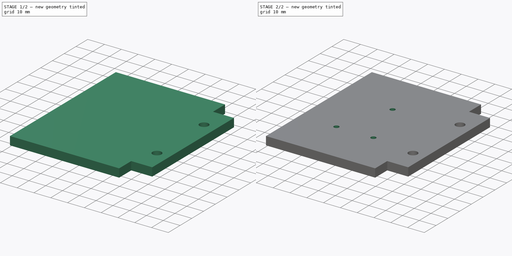
[diagram: build sequence overview — one tinted view per stage of 2, left to right]
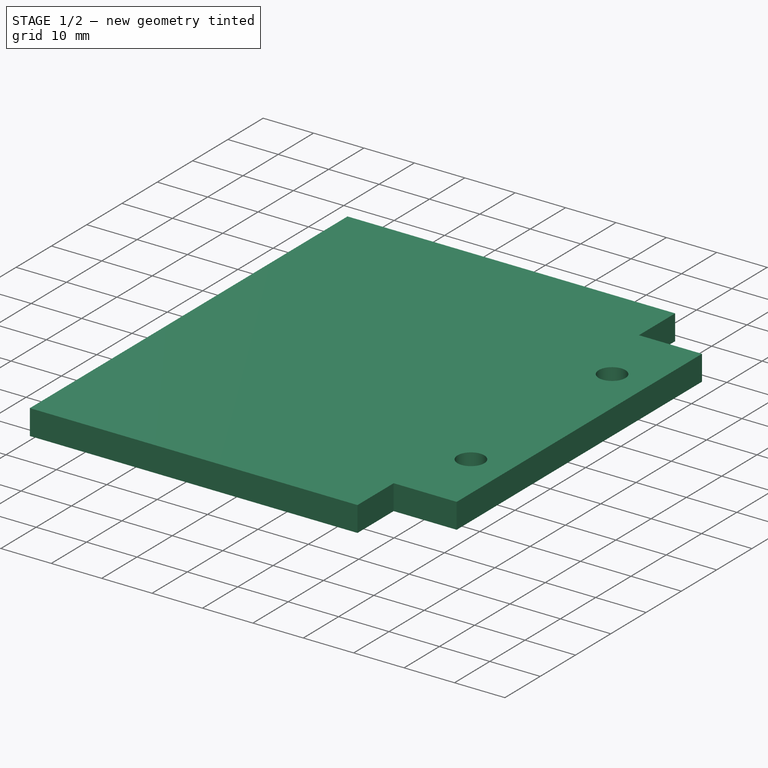
[diagram: stage 1 of 2 — iso view after this stage's code; geometry added in this stage tinted green]
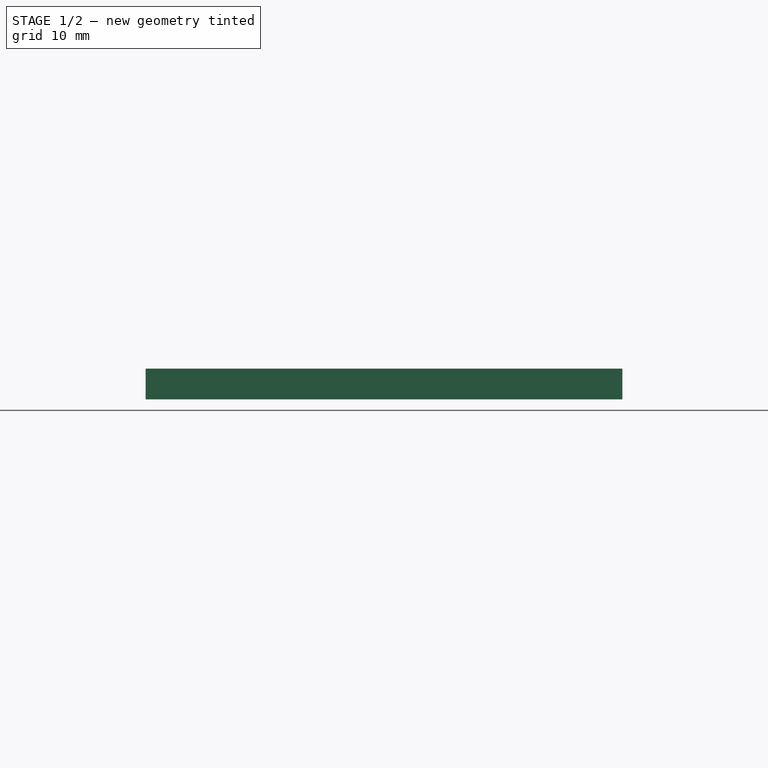
[diagram: stage 1 of 2 — front view after this stage's code; geometry added in this stage tinted green]
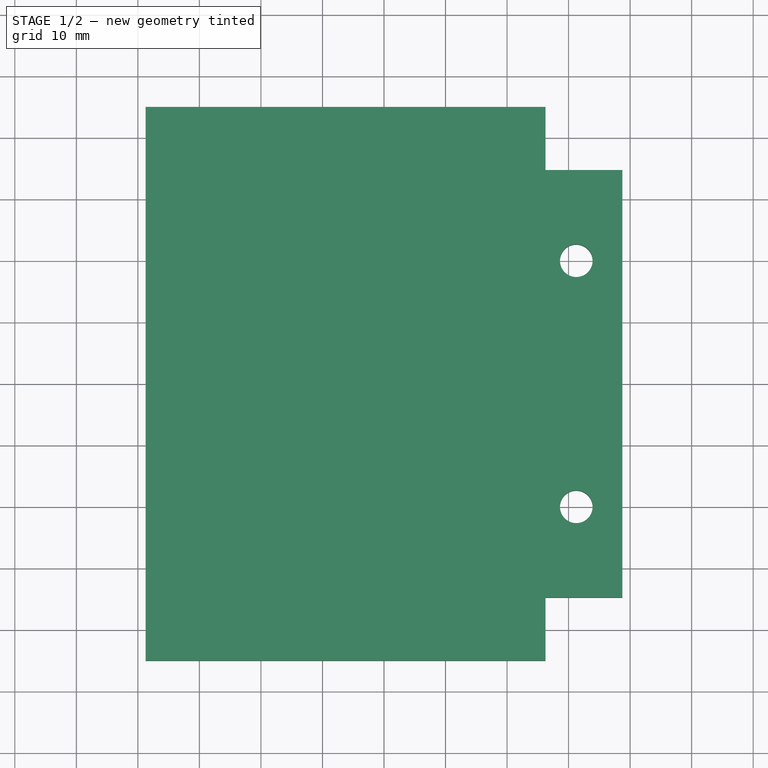
[diagram: stage 1 of 2 — top view after this stage's code; geometry added in this stage tinted green]
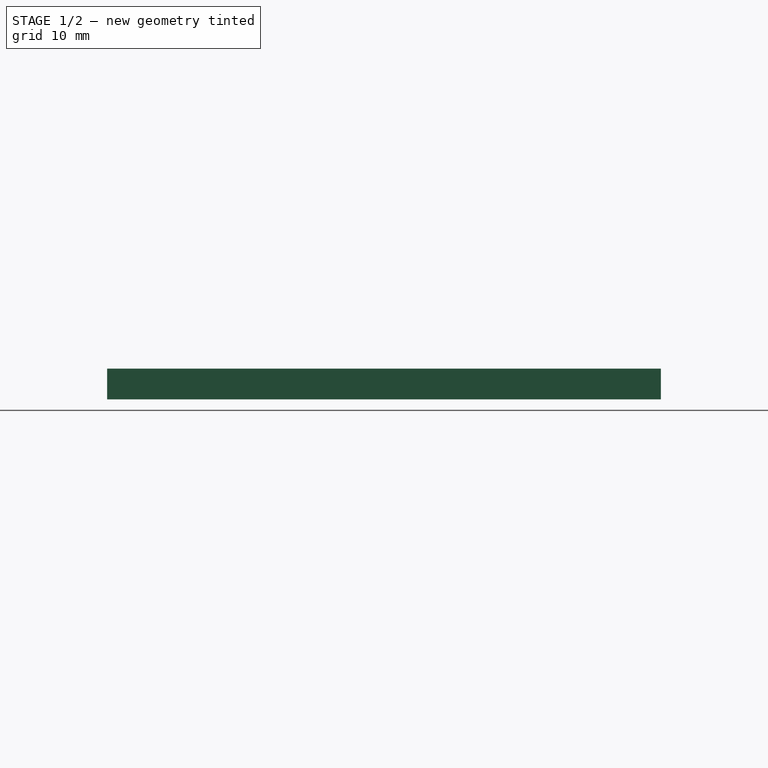
[diagram: stage 1 of 2 — right view after this stage's code; geometry added in this stage tinted green]
FCSTD DOCUMENT  (FreeCAD 0.21R33771 (Git))
Label: BatteryMount00
License: All rights reserved
LicenseURL: https://en.wikipedia.org/wiki/All_rights_reserved
objects: Sketcher::SketchObject×3, PartDesign::Pocket×2, PartDesign::Pad×1, PartDesign::Body×1
note: 10 computed .brp shape members not serialized (recipe doc carries the construction recipe); baked Part::Feature solids carry a one-line shape summary decoded from their .brp

FEATURE [Sketcher::SketchObject] Sketch
  FullyConstrained = true
  MapMode = 5
  Support = -> [XY_Plane]
  sketch-geometry (8):
    g0: LineSegment StartX=38.75 StartY=34.75 StartZ=0 EndX=38.75 EndY=-34.75 EndZ=0
    g1: LineSegment StartX=38.75 StartY=-34.75 StartZ=0 EndX=26.25 EndY=-34.75 EndZ=0
    g2: LineSegment StartX=26.25 StartY=-34.75 StartZ=0 EndX=26.25 EndY=-45 EndZ=0
    g3: LineSegment StartX=26.25 StartY=-45 StartZ=0 EndX=-38.75 EndY=-45 EndZ=0
    g4: LineSegment StartX=-38.75 StartY=-45 StartZ=0 EndX=-38.75 EndY=45 EndZ=0
    g5: LineSegment StartX=-38.75 StartY=45 StartZ=0 EndX=26.25 EndY=45 EndZ=0
    g6: LineSegment StartX=26.25 StartY=45 StartZ=0 EndX=26.25 EndY=34.75 EndZ=0
    g7: LineSegment StartX=26.25 StartY=34.75 StartZ=0 EndX=38.75 EndY=34.75 EndZ=0
  constraints (24):
    c: Vertical(g0)
    c: Coincident(g0,g1)
    c: Horizontal(g1)
    c: Coincident(g1,g2)
    c: Vertical(g2)
    c: Coincident(g2,g3)
    c: Horizontal(g3)
    c: Coincident(g3,g4)
    c: Vertical(g4)
    c: Coincident(g4,g5)
    c: Horizontal(g5)
    c: Coincident(g5,g6)
    c: Vertical(g6)
    c: Coincident(g6,g7)
    c: Coincident(g7,g0)
    c: Horizontal(g7)
    c: DistanceX(g5,g5) = 65
    c: DistanceX(g1,g6) = 0
    c: DistanceX(g4,g0) = 77.5
    c: DistanceX(g4,g-1) = 38.75
    c: DistanceY(g3,g4) = 90
    c: DistanceY(g3,g-1) = 45
    c: DistanceY(g2,g1) = 10.25
    c: DistanceY(g6,g5) = 10.25
FEATURE [PartDesign::Pad] Pad
  Direction = (0,0,1)
  Length = 5
  Length2 = 10
  Profile = -> Sketch
  ReferenceAxis = -> Sketch [N_Axis]
  Type = 0
FEATURE [Sketcher::SketchObject] Sketch001
  ExternalGeometry = -> [Pad]
  FullyConstrained = true
  MapMode = 5
  Placement = pos=(0,0,5) rot=(0,0,1;0rad)
  Support = -> [Pad]
  sketch-geometry (2):
    g0: Circle CenterX=31.25 CenterY=20 CenterZ=0 NormalX=0 NormalY=0 NormalZ=1 AngleXU=0 Radius=2.65
    g1: Circle CenterX=31.25 CenterY=-20 CenterZ=0 NormalX=0 NormalY=0 NormalZ=1 AngleXU=0 Radius=2.65
  constraints (6):
    c: DistanceY(g-1,g0) = 20
    c: DistanceY(g1,g-1) = 20
    c: DistanceX(g-3,g0) = 5
    c: DistanceX(g-3,g1) = 5
    c: Diameter(g0) = 5.3
    c: Diameter(g1) = 5.3
FEATURE [PartDesign::Pocket] Pocket
  BaseFeature = -> Pad
  Direction = (0,0,-1)
  Length = 5
  Length2 = 5
  Profile = -> Sketch001
  ReferenceAxis = -> Sketch001 [N_Axis]
  Type = 0
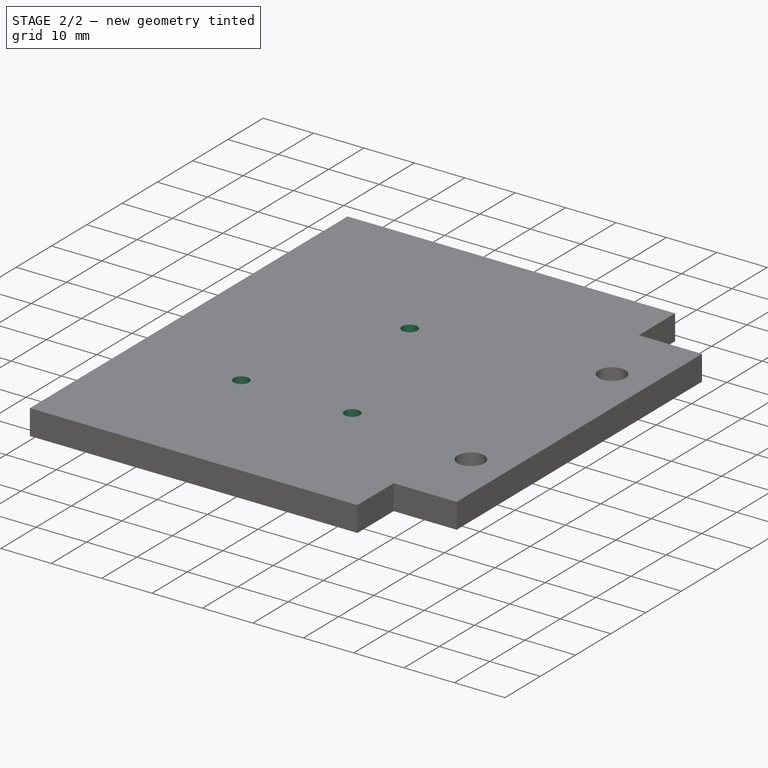
[diagram: stage 2 of 2 — iso view after this stage's code; geometry added in this stage tinted green]
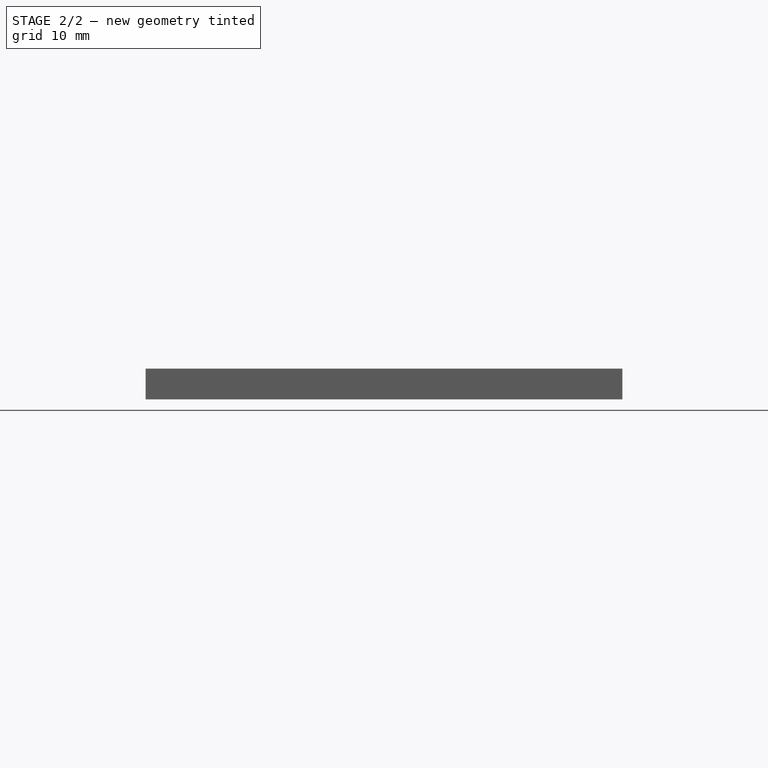
[diagram: stage 2 of 2 — front view after this stage's code; geometry added in this stage tinted green]
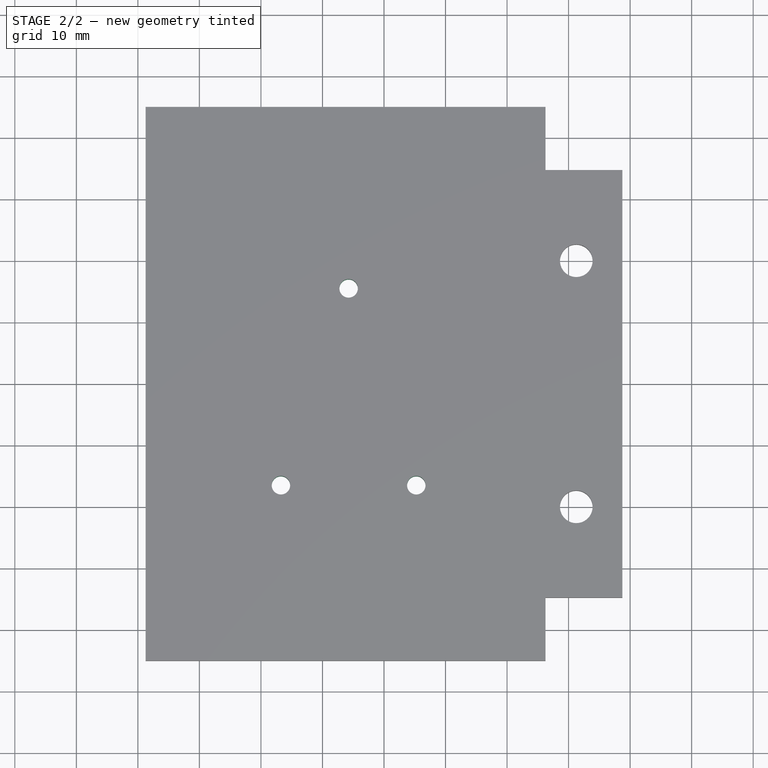
[diagram: stage 2 of 2 — top view after this stage's code; geometry added in this stage tinted green]
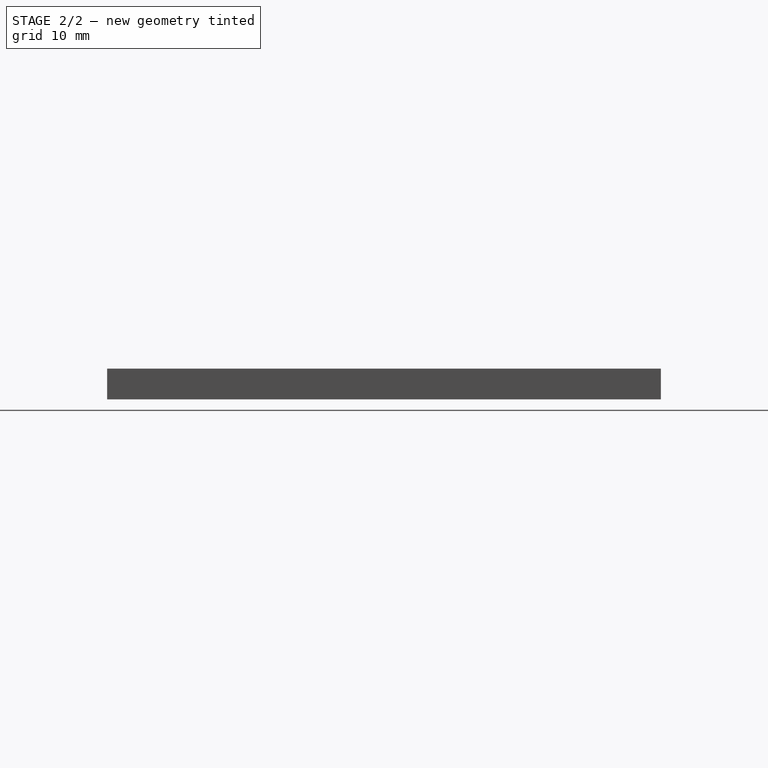
[diagram: stage 2 of 2 — right view after this stage's code; geometry added in this stage tinted green]
FEATURE [Sketcher::SketchObject] Sketch002
  ExternalGeometry = -> [Pocket]
  FullyConstrained = true
  MapMode = 5
  Placement = pos=(0,0,5) rot=(0,0,1;0rad)
  Support = -> [Pocket]
  sketch-geometry (3):
    g0: Circle CenterX=5.25 CenterY=-16.5 CenterZ=0 NormalX=0 NormalY=0 NormalZ=1 AngleXU=0 Radius=1.5
    g1: Circle CenterX=-16.75 CenterY=-16.5 CenterZ=0 NormalX=0 NormalY=0 NormalZ=1 AngleXU=0 Radius=1.5
    g2: Circle CenterX=-5.75 CenterY=15.5 CenterZ=0 NormalX=0 NormalY=0 NormalZ=1 AngleXU=0 Radius=1.5
  constraints (11):
    c: DistanceY(g-3,g0) = 28.5
    c: DistanceY(g-3,g1) = 28.5
    c: DistanceX(g1,g0) = 22
    c: DistanceX(g-3,g-3) = 65
    c: DistanceX(g0,g-3) = 21
    c: DistanceX(g2,g0) = 11
    c: DistanceY(g-3,g-4) = 90
    c: DistanceY(g0,g2) = 32
    c: Diameter(g2) = 3
    c: Diameter(g0) = 3
    c: Diameter(g1) = 3
FEATURE [PartDesign::Pocket] Pocket001
  BaseFeature = -> Pocket
  Direction = (0,0,-1)
  Length = 5
  Length2 = 5
  Profile = -> Sketch002
  ReferenceAxis = -> Sketch002 [N_Axis]
  Type = 0
FEATURE [PartDesign::Body] Body
  Group = -> [Sketch,Pad,Sketch001,Pocket,Sketch002,Pocket001]
  Origin = -> Origin
  Tip = -> Pocket001
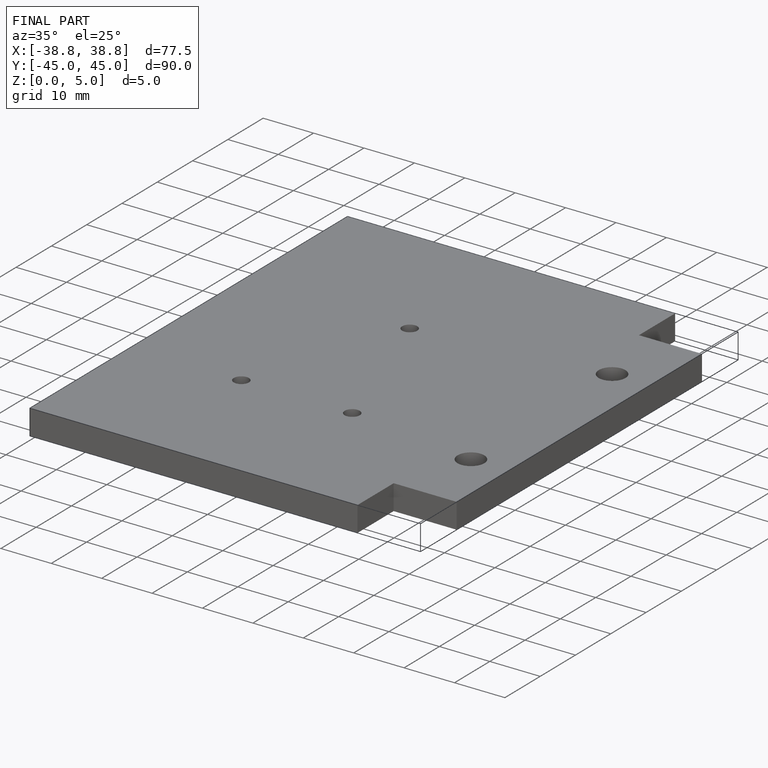
[diagram: finished part — iso view with bounding-box wireframe]
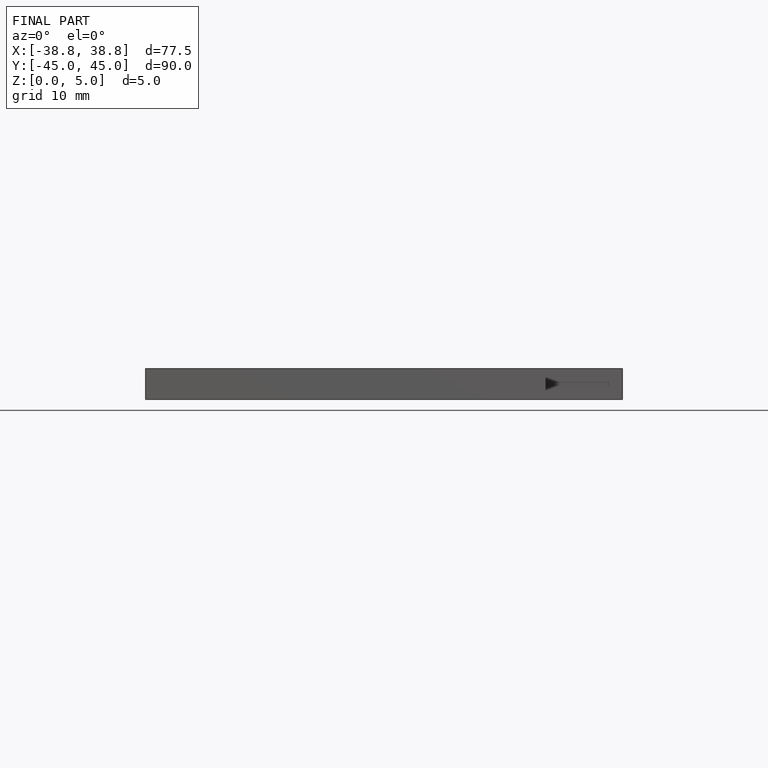
[diagram: finished part — front view with bounding-box wireframe]
